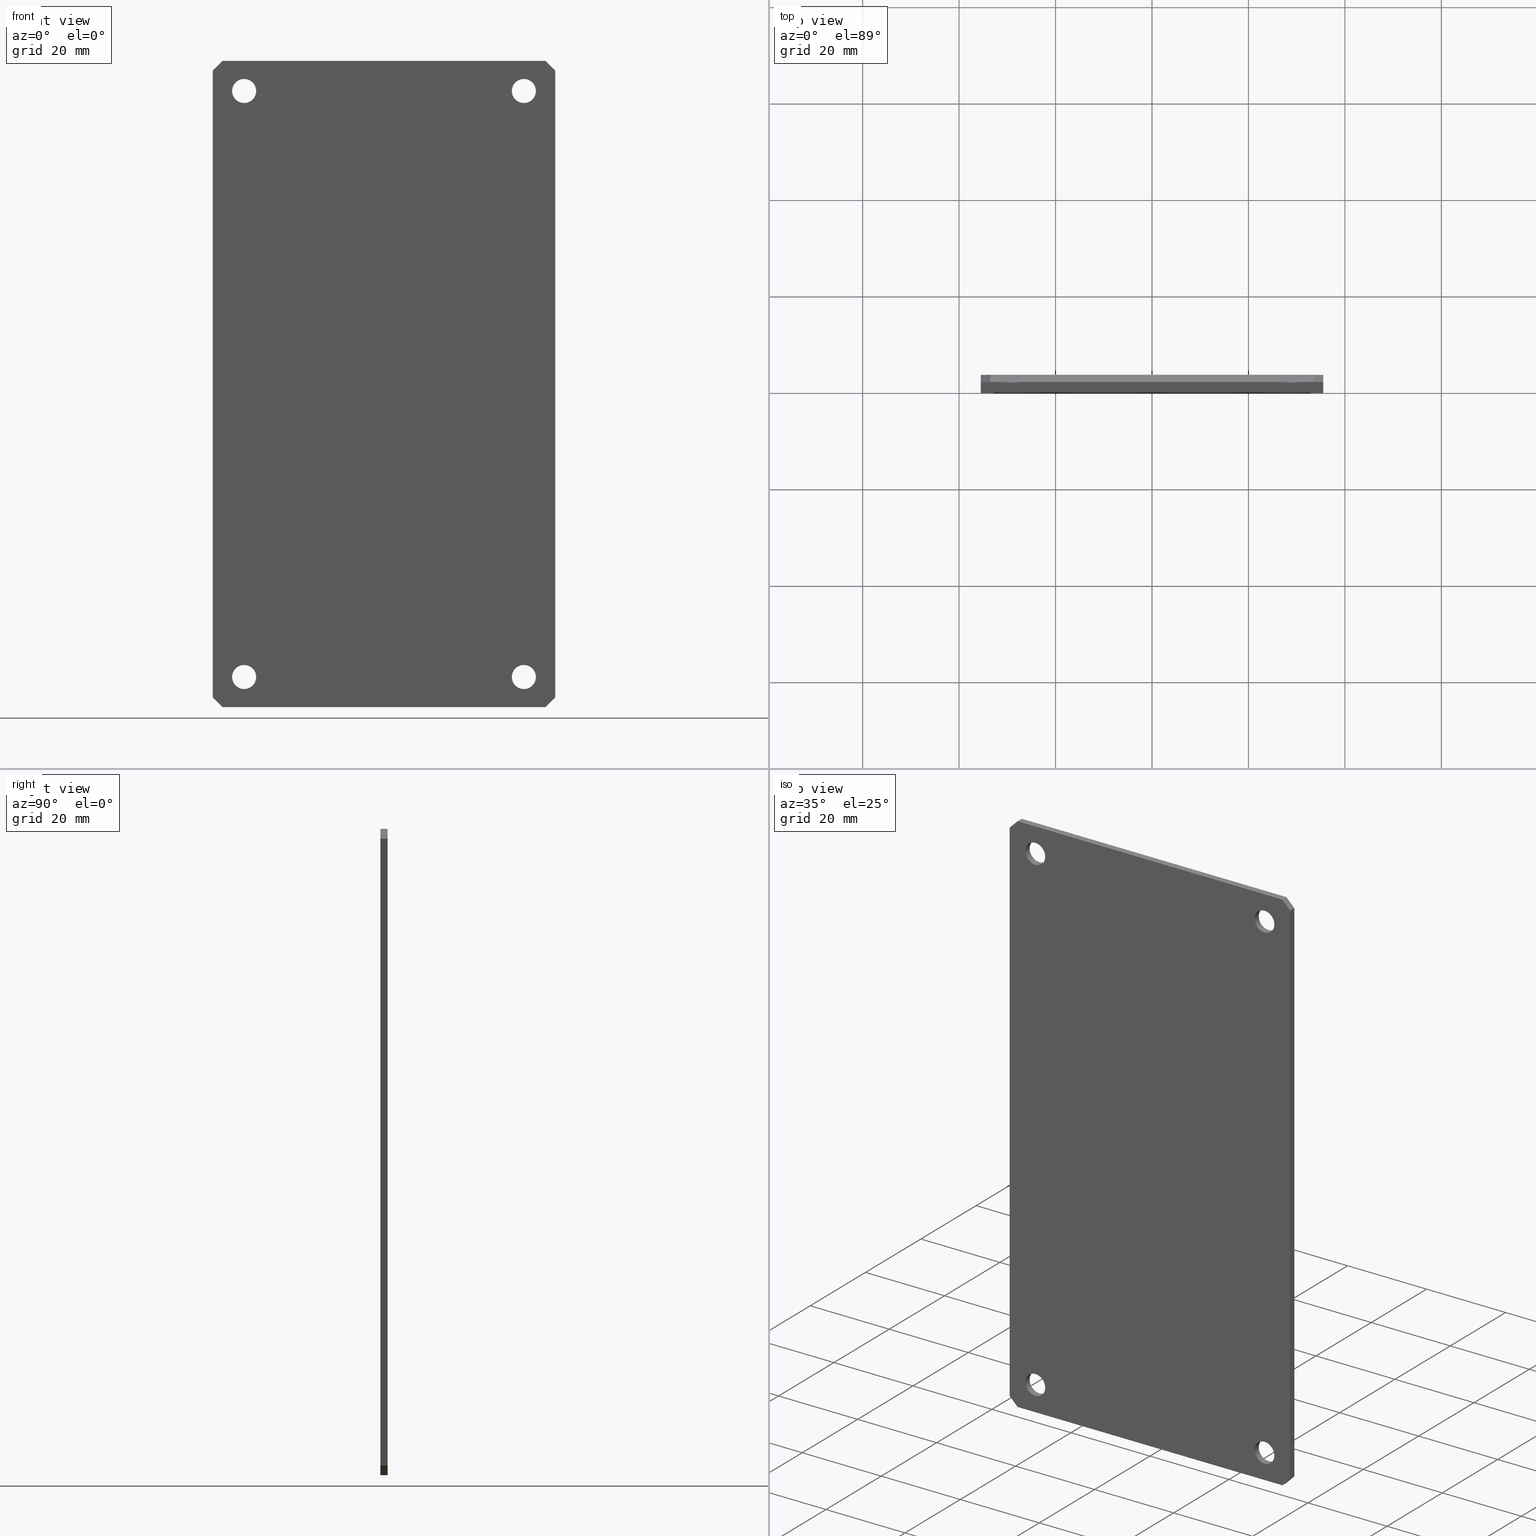
[diagram: canonical four-view strip — front | top / right | iso, engineering-drawing reading convention]
A machine part, canonical four-view strip (front | top / right | iso — engineering-drawing reading convention). The complete STEP part file that produces these views, byte-faithful:
ISO-10303-21;
HEADER;
FILE_DESCRIPTION (( 'STEP AP214' ),
    '1' );
FILE_NAME ('TM 0816.STEP',
    '2010-02-17T12:28:14',
    ( 'KennethW' ),
    ( 'FIBOX' ),
    'SwSTEP 2.0',
    'SolidWorks 2009',
    '' );
FILE_SCHEMA (( 'AUTOMOTIVE_DESIGN' ));
ENDSEC;

DATA;
#1 = ORIENTED_EDGE ( 'NONE', *, *, #3, .F. ) ;
#2 = VERTEX_POINT ( 'NONE', #242 ) ;
#3 = EDGE_CURVE ( 'NONE', #4, #2, #236, .T. ) ;
#4 = VERTEX_POINT ( 'NONE', #232 ) ;
#5 = VERTEX_POINT ( 'NONE', #231 ) ;
#6 = VERTEX_POINT ( 'NONE', #230 ) ;
#7 = ORIENTED_EDGE ( 'NONE', *, *, #52, .T. ) ;
#8 = ORIENTED_EDGE ( 'NONE', *, *, #9, .F. ) ;
#9 = EDGE_CURVE ( 'NONE', #159, #15, #217, .T. ) ;
#10 = ORIENTED_EDGE ( 'NONE', *, *, #161, .F. ) ;
#11 = EDGE_LOOP ( 'NONE', ( #106, #107 ) ) ;
#12 = VERTEX_POINT ( 'NONE', #213 ) ;
#13 = ORIENTED_EDGE ( 'NONE', *, *, #14, .T. ) ;
#14 = EDGE_CURVE ( 'NONE', #41, #154, #212, .T. ) ;
#15 = VERTEX_POINT ( 'NONE', #207 ) ;
#16 = ORIENTED_EDGE ( 'NONE', *, *, #17, .T. ) ;
#17 = EDGE_CURVE ( 'NONE', #30, #18, #205, .T. ) ;
#18 = VERTEX_POINT ( 'NONE', #306 ) ;
#19 = EDGE_CURVE ( 'NONE', #155, #158, #294, .T. ) ;
#20 = EDGE_CURVE ( 'NONE', #27, #66, #303, .T. ) ;
#21 = VERTEX_POINT ( 'NONE', #280 ) ;
#22 = ORIENTED_EDGE ( 'NONE', *, *, #19, .F. ) ;
#23 = ORIENTED_EDGE ( 'NONE', *, *, #24, .F. ) ;
#24 = EDGE_CURVE ( 'NONE', #25, #18, #289, .T. ) ;
#25 = VERTEX_POINT ( 'NONE', #291 ) ;
#26 = ORIENTED_EDGE ( 'NONE', *, *, #40, .F. ) ;
#27 = VERTEX_POINT ( 'NONE', #290 ) ;
#28 = ORIENTED_EDGE ( 'NONE', *, *, #166, .F. ) ;
#29 = ORIENTED_EDGE ( 'NONE', *, *, #161, .T. ) ;
#30 = VERTEX_POINT ( 'NONE', #309 ) ;
#31 = ORIENTED_EDGE ( 'NONE', *, *, #20, .F. ) ;
#32 = EDGE_LOOP ( 'NONE', ( #13, #38, #31, #28 ) ) ;
#33 = ORIENTED_EDGE ( 'NONE', *, *, #143, .T. ) ;
#34 = EDGE_CURVE ( 'NONE', #21, #158, #301, .T. ) ;
#35 = ADVANCED_FACE ( 'NONE', ( #286 ), #282, .F. ) ;
#36 = EDGE_LOOP ( 'NONE', ( #29, #33, #37, #26 ) ) ;
#37 = ORIENTED_EDGE ( 'NONE', *, *, #157, .F. ) ;
#38 = ORIENTED_EDGE ( 'NONE', *, *, #39, .T. ) ;
#39 = EDGE_CURVE ( 'NONE', #154, #66, #295, .T. ) ;
#40 = EDGE_CURVE ( 'NONE', #15, #12, #296, .T. ) ;
#41 = VERTEX_POINT ( 'NONE', #324 ) ;
#42 = ORIENTED_EDGE ( 'NONE', *, *, #43, .F. ) ;
#43 = EDGE_CURVE ( 'NONE', #44, #4, #322, .T. ) ;
#44 = VERTEX_POINT ( 'NONE', #318 ) ;
#45 = ORIENTED_EDGE ( 'NONE', *, *, #46, .F. ) ;
#46 = EDGE_CURVE ( 'NONE', #47, #44, #317, .T. ) ;
#47 = VERTEX_POINT ( 'NONE', #313 ) ;
#48 = ORIENTED_EDGE ( 'NONE', *, *, #49, .F. ) ;
#49 = EDGE_CURVE ( 'NONE', #50, #47, #312, .T. ) ;
#50 = VERTEX_POINT ( 'NONE', #329 ) ;
#51 = ORIENTED_EDGE ( 'NONE', *, *, #140, .F. ) ;
#52 = EDGE_CURVE ( 'NONE', #6, #112, #328, .T. ) ;
#53 = EDGE_LOOP ( 'NONE', ( #56, #57 ) ) ;
#54 = ORIENTED_EDGE ( 'NONE', *, *, #55, .T. ) ;
#55 = EDGE_CURVE ( 'NONE', #66, #27, #270, .T. ) ;
#56 = ORIENTED_EDGE ( 'NONE', *, *, #19, .T. ) ;
#57 = ORIENTED_EDGE ( 'NONE', *, *, #58, .T. ) ;
#58 = EDGE_CURVE ( 'NONE', #158, #155, #265, .T. ) ;
#59 = ADVANCED_FACE ( 'NONE', ( #279 ), #275, .F. ) ;
#60 = EDGE_LOOP ( 'NONE', ( #61, #62, #64, #70 ) ) ;
#61 = ORIENTED_EDGE ( 'NONE', *, *, #186, .T. ) ;
#62 = ORIENTED_EDGE ( 'NONE', *, *, #63, .F. ) ;
#63 = EDGE_CURVE ( 'NONE', #113, #5, #260, .T. ) ;
#64 = ORIENTED_EDGE ( 'NONE', *, *, #111, .F. ) ;
#65 = EDGE_LOOP ( 'NONE', ( #162, #16, #23, #146 ) ) ;
#66 = VERTEX_POINT ( 'NONE', #256 ) ;
#67 = EDGE_LOOP ( 'NONE', ( #156, #153, #22, #145 ) ) ;
#68 = MANIFOLD_SOLID_BREP ( 'NONE', #194 ) ;
#69 = ADVANCED_FACE ( 'NONE', ( #355 ), #353, .F. ) ;
#70 = ORIENTED_EDGE ( 'NONE', *, *, #71, .T. ) ;
#71 = EDGE_CURVE ( 'NONE', #112, #199, #396, .T. ) ;
#72 = ADVANCED_FACE ( 'NONE', ( #435 ), #411, .F. ) ;
#73 = EDGE_LOOP ( 'NONE', ( #74, #75, #77, #78 ) ) ;
#74 = ORIENTED_EDGE ( 'NONE', *, *, #140, .T. ) ;
#75 = ORIENTED_EDGE ( 'NONE', *, *, #76, .F. ) ;
#76 = EDGE_CURVE ( 'NONE', #116, #50, #409, .T. ) ;
#77 = ORIENTED_EDGE ( 'NONE', *, *, #115, .F. ) ;
#78 = ORIENTED_EDGE ( 'NONE', *, *, #63, .T. ) ;
#79 = ADVANCED_FACE ( 'NONE', ( #371 ), #417, .F. ) ;
#80 = EDGE_LOOP ( 'NONE', ( #81, #82, #84, #85 ) ) ;
#81 = ORIENTED_EDGE ( 'NONE', *, *, #49, .T. ) ;
#82 = ORIENTED_EDGE ( 'NONE', *, *, #83, .F. ) ;
#83 = EDGE_CURVE ( 'NONE', #119, #47, #432, .T. ) ;
#84 = ORIENTED_EDGE ( 'NONE', *, *, #118, .F. ) ;
#85 = ORIENTED_EDGE ( 'NONE', *, *, #76, .T. ) ;
#86 = ADVANCED_FACE ( 'NONE', ( #405 ), #433, .F. ) ;
#87 = EDGE_LOOP ( 'NONE', ( #88, #89, #91, #92 ) ) ;
#88 = ORIENTED_EDGE ( 'NONE', *, *, #46, .T. ) ;
#89 = ORIENTED_EDGE ( 'NONE', *, *, #90, .F. ) ;
#90 = EDGE_CURVE ( 'NONE', #122, #44, #421, .T. ) ;
#91 = ORIENTED_EDGE ( 'NONE', *, *, #121, .F. ) ;
#92 = ORIENTED_EDGE ( 'NONE', *, *, #83, .T. ) ;
#93 = ADVANCED_FACE ( 'NONE', ( #422 ), #416, .F. ) ;
#94 = EDGE_LOOP ( 'NONE', ( #95, #96, #98, #99 ) ) ;
#95 = ORIENTED_EDGE ( 'NONE', *, *, #43, .T. ) ;
#96 = ORIENTED_EDGE ( 'NONE', *, *, #97, .F. ) ;
#97 = EDGE_CURVE ( 'NONE', #125, #4, #403, .T. ) ;
#98 = ORIENTED_EDGE ( 'NONE', *, *, #124, .F. ) ;
#99 = ORIENTED_EDGE ( 'NONE', *, *, #90, .T. ) ;
#100 = ADVANCED_FACE ( 'NONE', ( #361 ), #399, .F. ) ;
#101 = EDGE_LOOP ( 'NONE', ( #102, #103, #105, #181 ) ) ;
#102 = ORIENTED_EDGE ( 'NONE', *, *, #3, .T. ) ;
#103 = ORIENTED_EDGE ( 'NONE', *, *, #104, .F. ) ;
#104 = EDGE_CURVE ( 'NONE', #128, #2, #358, .T. ) ;
#105 = ORIENTED_EDGE ( 'NONE', *, *, #127, .F. ) ;
#106 = ORIENTED_EDGE ( 'NONE', *, *, #163, .F. ) ;
#107 = ORIENTED_EDGE ( 'NONE', *, *, #108, .F. ) ;
#108 = EDGE_CURVE ( 'NONE', #30, #164, #365, .T. ) ;
#109 = EDGE_LOOP ( 'NONE', ( #110, #114, #117, #120, #123, #126, #129, #7 ) ) ;
#110 = ORIENTED_EDGE ( 'NONE', *, *, #111, .T. ) ;
#111 = EDGE_CURVE ( 'NONE', #112, #113, #429, .T. ) ;
#112 = VERTEX_POINT ( 'NONE', #425 ) ;
#113 = VERTEX_POINT ( 'NONE', #424 ) ;
#114 = ORIENTED_EDGE ( 'NONE', *, *, #115, .T. ) ;
#115 = EDGE_CURVE ( 'NONE', #113, #116, #348, .T. ) ;
#116 = VERTEX_POINT ( 'NONE', #344 ) ;
#117 = ORIENTED_EDGE ( 'NONE', *, *, #118, .T. ) ;
#118 = EDGE_CURVE ( 'NONE', #116, #119, #343, .T. ) ;
#119 = VERTEX_POINT ( 'NONE', #339 ) ;
#120 = ORIENTED_EDGE ( 'NONE', *, *, #121, .T. ) ;
#121 = EDGE_CURVE ( 'NONE', #119, #122, #393, .T. ) ;
#122 = VERTEX_POINT ( 'NONE', #389 ) ;
#123 = ORIENTED_EDGE ( 'NONE', *, *, #124, .T. ) ;
#124 = EDGE_CURVE ( 'NONE', #122, #125, #388, .T. ) ;
#125 = VERTEX_POINT ( 'NONE', #384 ) ;
#126 = ORIENTED_EDGE ( 'NONE', *, *, #127, .T. ) ;
#127 = EDGE_CURVE ( 'NONE', #125, #128, #383, .T. ) ;
#128 = VERTEX_POINT ( 'NONE', #436 ) ;
#129 = ORIENTED_EDGE ( 'NONE', *, *, #130, .T. ) ;
#130 = EDGE_CURVE ( 'NONE', #128, #6, #437, .T. ) ;
#131 = EDGE_LOOP ( 'NONE', ( #177, #175 ) ) ;
#132 = ORIENTED_EDGE ( 'NONE', *, *, #150, .F. ) ;
#133 = ORIENTED_EDGE ( 'NONE', *, *, #134, .F. ) ;
#134 = EDGE_CURVE ( 'NONE', #21, #152, #441, .T. ) ;
#135 = ADVANCED_FACE ( 'NONE', ( #460, #459, #458, #457, #456 ), #455, .F. ) ;
#136 = EDGE_LOOP ( 'NONE', ( #137, #138 ) ) ;
#137 = ORIENTED_EDGE ( 'NONE', *, *, #157, .T. ) ;
#138 = ORIENTED_EDGE ( 'NONE', *, *, #139, .T. ) ;
#139 = EDGE_CURVE ( 'NONE', #144, #12, #450, .T. ) ;
#140 = EDGE_CURVE ( 'NONE', #5, #50, #595, .T. ) ;
#141 = EDGE_LOOP ( 'NONE', ( #142, #54 ) ) ;
#142 = ORIENTED_EDGE ( 'NONE', *, *, #20, .T. ) ;
#143 = EDGE_CURVE ( 'NONE', #159, #144, #597, .T. ) ;
#144 = VERTEX_POINT ( 'NONE', #538 ) ;
#145 = ORIENTED_EDGE ( 'NONE', *, *, #165, .F. ) ;
#146 = ORIENTED_EDGE ( 'NONE', *, *, #147, .F. ) ;
#147 = EDGE_CURVE ( 'NONE', #164, #25, #537, .T. ) ;
#148 = ADVANCED_FACE ( 'NONE', ( #594, #593, #592, #591, #590 ), #589, .T. ) ;
#149 = EDGE_LOOP ( 'NONE', ( #10, #8 ) ) ;
#150 = EDGE_CURVE ( 'NONE', #152, #21, #587, .T. ) ;
#151 = ADVANCED_FACE ( 'NONE', ( #579 ), #578, .F. ) ;
#152 = VERTEX_POINT ( 'NONE', #576 ) ;
#153 = ORIENTED_EDGE ( 'NONE', *, *, #34, .T. ) ;
#154 = VERTEX_POINT ( 'NONE', #572 ) ;
#155 = VERTEX_POINT ( 'NONE', #571 ) ;
#156 = ORIENTED_EDGE ( 'NONE', *, *, #150, .T. ) ;
#157 = EDGE_CURVE ( 'NONE', #12, #144, #510, .T. ) ;
#158 = VERTEX_POINT ( 'NONE', #505 ) ;
#159 = VERTEX_POINT ( 'NONE', #504 ) ;
#160 = ADVANCED_FACE ( 'NONE', ( #503 ), #502, .F. ) ;
#161 = EDGE_CURVE ( 'NONE', #15, #159, #501, .T. ) ;
#162 = ORIENTED_EDGE ( 'NONE', *, *, #163, .T. ) ;
#163 = EDGE_CURVE ( 'NONE', #164, #30, #492, .T. ) ;
#164 = VERTEX_POINT ( 'NONE', #487 ) ;
#165 = EDGE_CURVE ( 'NONE', #152, #155, #486, .T. ) ;
#166 = EDGE_CURVE ( 'NONE', #41, #27, #482, .T. ) ;
#167 = ORIENTED_EDGE ( 'NONE', *, *, #179, .T. ) ;
#168 = ORIENTED_EDGE ( 'NONE', *, *, #169, .F. ) ;
#169 = EDGE_CURVE ( 'NONE', #6, #173, #570, .T. ) ;
#170 = ORIENTED_EDGE ( 'NONE', *, *, #130, .F. ) ;
#171 = ORIENTED_EDGE ( 'NONE', *, *, #104, .T. ) ;
#172 = ORIENTED_EDGE ( 'NONE', *, *, #180, .F. ) ;
#173 = VERTEX_POINT ( 'NONE', #566 ) ;
#174 = EDGE_LOOP ( 'NONE', ( #132, #133 ) ) ;
#175 = ORIENTED_EDGE ( 'NONE', *, *, #176, .F. ) ;
#176 = EDGE_CURVE ( 'NONE', #154, #41, #565, .T. ) ;
#177 = ORIENTED_EDGE ( 'NONE', *, *, #14, .F. ) ;
#178 = ORIENTED_EDGE ( 'NONE', *, *, #179, .F. ) ;
#179 = EDGE_CURVE ( 'NONE', #2, #173, #560, .T. ) ;
#180 = EDGE_CURVE ( 'NONE', #173, #199, #556, .T. ) ;
#181 = ORIENTED_EDGE ( 'NONE', *, *, #97, .T. ) ;
#182 = ADVANCED_FACE ( 'NONE', ( #552 ), #550, .F. ) ;
#183 = EDGE_LOOP ( 'NONE', ( #167, #168, #170, #171 ) ) ;
#184 = EDGE_LOOP ( 'NONE', ( #189, #172, #178, #1, #42, #45, #48, #51 ) ) ;
#185 = ORIENTED_EDGE ( 'NONE', *, *, #24, .T. ) ;
#186 = EDGE_CURVE ( 'NONE', #199, #5, #551, .T. ) ;
#187 = ORIENTED_EDGE ( 'NONE', *, *, #169, .T. ) ;
#188 = ORIENTED_EDGE ( 'NONE', *, *, #71, .F. ) ;
#189 = ORIENTED_EDGE ( 'NONE', *, *, #186, .F. ) ;
#190 = ORIENTED_EDGE ( 'NONE', *, *, #34, .F. ) ;
#191 = ORIENTED_EDGE ( 'NONE', *, *, #134, .T. ) ;
#192 = ORIENTED_EDGE ( 'NONE', *, *, #165, .T. ) ;
#193 = ORIENTED_EDGE ( 'NONE', *, *, #58, .F. ) ;
#194 = CLOSED_SHELL ( 'NONE', ( #69, #151, #160, #35, #148, #135, #59, #72, #79, #86, #93, #100, #182, #223, #222, #246, #240, #239 ) ) ;
#195 = ORIENTED_EDGE ( 'NONE', *, *, #108, .T. ) ;
#196 = ORIENTED_EDGE ( 'NONE', *, *, #147, .T. ) ;
#197 = ORIENTED_EDGE ( 'NONE', *, *, #17, .F. ) ;
#198 = EDGE_LOOP ( 'NONE', ( #185, #200 ) ) ;
#199 = VERTEX_POINT ( 'NONE', #542 ) ;
#200 = ORIENTED_EDGE ( 'NONE', *, *, #201, .T. ) ;
#201 = EDGE_CURVE ( 'NONE', #18, #25, #541, .T. ) ;
#202 = DIRECTION ( 'NONE',  ( -0.0000000000000000000, -1.000000000000000000, -0.0000000000000000000 ) ) ;
#203 = VECTOR ( 'NONE', #202, 1000.000000000000000 ) ;
#204 = CARTESIAN_POINT ( 'NONE',  ( -29.00000000000000000, 1.500000000000000000, -58.24999999999998600 ) ) ;
#205 = LINE ( 'NONE', #204, #203 ) ;
#206 = STYLED_ITEM ( 'NONE', ( #249 ), #68 ) ;
#207 = CARTESIAN_POINT ( 'NONE',  ( 29.00000000000000000, 1.500000000000000000, 58.25000000000000000 ) ) ;
#208 = DIRECTION ( 'NONE',  ( 0.0000000000000000000, 0.0000000000000000000, -1.000000000000000000 ) ) ;
#209 = DIRECTION ( 'NONE',  ( -0.0000000000000000000, 1.000000000000000000, -0.0000000000000000000 ) ) ;
#210 = CARTESIAN_POINT ( 'NONE',  ( 29.00000000000000000, 1.500000000000000000, -60.74999999999999300 ) ) ;
#211 = AXIS2_PLACEMENT_3D ( 'NONE', #210, #209, #208 ) ;
#212 = CIRCLE ( 'NONE', #211, 2.499999999999995100 ) ;
#213 = CARTESIAN_POINT ( 'NONE',  ( 29.00000000000000000, 0.0000000000000000000, 58.25000000000000000 ) ) ;
#214 = DIRECTION ( 'NONE',  ( 0.0000000000000000000, 0.0000000000000000000, 1.000000000000000000 ) ) ;
#215 = DIRECTION ( 'NONE',  ( 0.0000000000000000000, 1.000000000000000000, 0.0000000000000000000 ) ) ;
#216 = AXIS2_PLACEMENT_3D ( 'NONE', #229, #215, #214 ) ;
#217 = CIRCLE ( 'NONE', #216, 2.499999999999995100 ) ;
#218 = ORIENTED_EDGE ( 'NONE', *, *, #180, .T. ) ;
#219 = ORIENTED_EDGE ( 'NONE', *, *, #176, .T. ) ;
#220 = ORIENTED_EDGE ( 'NONE', *, *, #166, .T. ) ;
#221 = EDGE_LOOP ( 'NONE', ( #197, #195, #196, #245 ) ) ;
#222 = ADVANCED_FACE ( 'NONE', ( #529 ), #528, .F. ) ;
#223 = ADVANCED_FACE ( 'NONE', ( #526 ), #522, .F. ) ;
#224 = EDGE_LOOP ( 'NONE', ( #218, #188, #225, #187 ) ) ;
#225 = ORIENTED_EDGE ( 'NONE', *, *, #52, .F. ) ;
#226 = ORIENTED_EDGE ( 'NONE', *, *, #139, .F. ) ;
#227 = EDGE_LOOP ( 'NONE', ( #190, #191, #192, #193 ) ) ;
#228 = ORIENTED_EDGE ( 'NONE', *, *, #9, .T. ) ;
#229 = CARTESIAN_POINT ( 'NONE',  ( 29.00000000000000000, 1.500000000000000000, 60.75000000000000700 ) ) ;
#230 = CARTESIAN_POINT ( 'NONE',  ( 33.49999999999999300, 1.500000000000000000, -67.00000000000000000 ) ) ;
#231 = CARTESIAN_POINT ( 'NONE',  ( -35.49999999999999300, 0.0000000000000000000, -65.00000000000001400 ) ) ;
#232 = CARTESIAN_POINT ( 'NONE',  ( 35.49999999999999300, 0.0000000000000000000, 65.00000000000001400 ) ) ;
#233 = DIRECTION ( 'NONE',  ( 0.0000000000000000000, 0.0000000000000000000, -1.000000000000000000 ) ) ;
#234 = VECTOR ( 'NONE', #233, 1000.000000000000000 ) ;
#235 = CARTESIAN_POINT ( 'NONE',  ( 35.49999999999999300, 0.0000000000000000000, 65.00000000000001400 ) ) ;
#236 = LINE ( 'NONE', #235, #234 ) ;
#237 = EDGE_LOOP ( 'NONE', ( #238, #228, #247, #226 ) ) ;
#238 = ORIENTED_EDGE ( 'NONE', *, *, #143, .F. ) ;
#239 = ADVANCED_FACE ( 'NONE', ( #520 ), #516, .F. ) ;
#240 = ADVANCED_FACE ( 'NONE', ( #514 ), #617, .F. ) ;
#241 = ORIENTED_EDGE ( 'NONE', *, *, #55, .F. ) ;
#242 = CARTESIAN_POINT ( 'NONE',  ( 35.49999999999999300, 0.0000000000000000000, -65.00000000000001400 ) ) ;
#243 = EDGE_LOOP ( 'NONE', ( #244, #219, #220, #241 ) ) ;
#244 = ORIENTED_EDGE ( 'NONE', *, *, #39, .F. ) ;
#245 = ORIENTED_EDGE ( 'NONE', *, *, #201, .F. ) ;
#246 = ADVANCED_FACE ( 'NONE', ( #618 ), #612, .F. ) ;
#247 = ORIENTED_EDGE ( 'NONE', *, *, #40, .T. ) ;
#248 = CARTESIAN_POINT ( 'NONE',  ( -29.00000000000000000, 0.0000000000000000000, -60.74999999999999300 ) ) ;
#249 = PRESENTATION_STYLE_ASSIGNMENT (( #250 ) ) ;
#250 = SURFACE_STYLE_USAGE ( .BOTH. , #251 ) ;
#251 = SURFACE_SIDE_STYLE ('',( #252 ) ) ;
#252 = SURFACE_STYLE_FILL_AREA ( #253 ) ;
#253 = FILL_AREA_STYLE ('',( #254 ) ) ;
#254 = FILL_AREA_STYLE_COLOUR ( '', #255 ) ;
#255 = COLOUR_RGB ( '',0.7529411764705882200, 0.7529411764705882200, 0.7529411764705882200 ) ;
#256 = CARTESIAN_POINT ( 'NONE',  ( 29.00000000000000000, 0.0000000000000000000, -58.24999999999998600 ) ) ;
#257 = DIRECTION ( 'NONE',  ( -0.0000000000000000000, -1.000000000000000000, -0.0000000000000000000 ) ) ;
#258 = VECTOR ( 'NONE', #257, 1000.000000000000000 ) ;
#259 = CARTESIAN_POINT ( 'NONE',  ( -35.49999999999999300, 1.500000000000000000, -65.00000000000001400 ) ) ;
#260 = LINE ( 'NONE', #259, #258 ) ;
#261 = DIRECTION ( 'NONE',  ( 0.7071067811865487900, 0.0000000000000000000, -0.7071067811865462400 ) ) ;
#262 = DIRECTION ( 'NONE',  ( -0.0000000000000000000, -1.000000000000000000, -0.0000000000000000000 ) ) ;
#263 = VECTOR ( 'NONE', #262, 1000.000000000000000 ) ;
#264 = CARTESIAN_POINT ( 'NONE',  ( 29.00000000000000000, 1.500000000000000000, -58.24999999999998600 ) ) ;
#265 = CIRCLE ( 'NONE', #278, 2.500000000000002200 ) ;
#266 = DIRECTION ( 'NONE',  ( 0.0000000000000000000, 0.0000000000000000000, -1.000000000000000000 ) ) ;
#267 = DIRECTION ( 'NONE',  ( -0.0000000000000000000, 1.000000000000000000, -0.0000000000000000000 ) ) ;
#268 = CARTESIAN_POINT ( 'NONE',  ( 29.00000000000000000, 0.0000000000000000000, -60.74999999999999300 ) ) ;
#269 = AXIS2_PLACEMENT_3D ( 'NONE', #268, #267, #266 ) ;
#270 = CIRCLE ( 'NONE', #269, 2.499999999999995100 ) ;
#271 = CARTESIAN_POINT ( 'NONE',  ( -29.00000000000000000, 0.0000000000000000000, 60.75000000000000700 ) ) ;
#272 = DIRECTION ( 'NONE',  ( 0.7071067811865462400, -0.0000000000000000000, 0.7071067811865487900 ) ) ;
#273 = CARTESIAN_POINT ( 'NONE',  ( -35.49999999999999300, 1.500000000000000000, -65.00000000000001400 ) ) ;
#274 = AXIS2_PLACEMENT_3D ( 'NONE', #273, #272, #261 ) ;
#275 = PLANE ( 'NONE',  #274 ) ;
#276 = DIRECTION ( 'NONE',  ( 0.0000000000000000000, 0.0000000000000000000, -1.000000000000000000 ) ) ;
#277 = DIRECTION ( 'NONE',  ( -0.0000000000000000000, 1.000000000000000000, -0.0000000000000000000 ) ) ;
#278 = AXIS2_PLACEMENT_3D ( 'NONE', #271, #277, #276 ) ;
#279 = FACE_OUTER_BOUND ( 'NONE', #60, .T. ) ;
#280 = CARTESIAN_POINT ( 'NONE',  ( -29.00000000000000000, 1.500000000000000000, 63.25000000000000000 ) ) ;
#281 = AXIS2_PLACEMENT_3D ( 'NONE', #308, #323, #305 ) ;
#282 = CYLINDRICAL_SURFACE ( 'NONE', #293, 2.499999999999995100 ) ;
#283 = DIRECTION ( 'NONE',  ( -0.0000000000000000000, -1.000000000000000000, -0.0000000000000000000 ) ) ;
#284 = VECTOR ( 'NONE', #283, 1000.000000000000000 ) ;
#285 = CARTESIAN_POINT ( 'NONE',  ( 29.00000000000000000, 1.500000000000000000, 58.25000000000000000 ) ) ;
#286 = FACE_OUTER_BOUND ( 'NONE', #65, .T. ) ;
#287 = VECTOR ( 'NONE', #299, 1000.000000000000000 ) ;
#288 = DIRECTION ( 'NONE',  ( -0.0000000000000000000, 1.000000000000000000, -0.0000000000000000000 ) ) ;
#289 = CIRCLE ( 'NONE', #307, 2.500000000000002200 ) ;
#290 = CARTESIAN_POINT ( 'NONE',  ( 29.00000000000000000, 0.0000000000000000000, -63.24999999999998600 ) ) ;
#291 = CARTESIAN_POINT ( 'NONE',  ( -29.00000000000000000, 0.0000000000000000000, -63.24999999999998600 ) ) ;
#292 = DIRECTION ( 'NONE',  ( 0.0000000000000000000, 0.0000000000000000000, -1.000000000000000000 ) ) ;
#293 = AXIS2_PLACEMENT_3D ( 'NONE', #302, #304, #297 ) ;
#294 = CIRCLE ( 'NONE', #333, 2.500000000000002200 ) ;
#295 = LINE ( 'NONE', #264, #263 ) ;
#296 = LINE ( 'NONE', #285, #284 ) ;
#297 = DIRECTION ( 'NONE',  ( 0.0000000000000000000, 0.0000000000000000000, -1.000000000000000000 ) ) ;
#298 = CARTESIAN_POINT ( 'NONE',  ( -29.00000000000000000, 0.0000000000000000000, 60.75000000000000700 ) ) ;
#299 = DIRECTION ( 'NONE',  ( -0.0000000000000000000, -1.000000000000000000, -0.0000000000000000000 ) ) ;
#300 = CARTESIAN_POINT ( 'NONE',  ( -29.00000000000000000, 1.500000000000000000, 63.25000000000000000 ) ) ;
#301 = LINE ( 'NONE', #300, #287 ) ;
#302 = CARTESIAN_POINT ( 'NONE',  ( -29.00000000000000000, 1.500000000000000000, -60.74999999999999300 ) ) ;
#303 = CIRCLE ( 'NONE', #281, 2.499999999999995100 ) ;
#304 = DIRECTION ( 'NONE',  ( -0.0000000000000000000, -1.000000000000000000, -0.0000000000000000000 ) ) ;
#305 = DIRECTION ( 'NONE',  ( 0.0000000000000000000, 0.0000000000000000000, -1.000000000000000000 ) ) ;
#306 = CARTESIAN_POINT ( 'NONE',  ( -29.00000000000000000, 0.0000000000000000000, -58.24999999999998600 ) ) ;
#307 = AXIS2_PLACEMENT_3D ( 'NONE', #248, #311, #310 ) ;
#308 = CARTESIAN_POINT ( 'NONE',  ( 29.00000000000000000, 0.0000000000000000000, -60.74999999999999300 ) ) ;
#309 = CARTESIAN_POINT ( 'NONE',  ( -29.00000000000000000, 1.500000000000000000, -58.24999999999998600 ) ) ;
#310 = DIRECTION ( 'NONE',  ( 0.0000000000000000000, 0.0000000000000000000, 1.000000000000000000 ) ) ;
#311 = DIRECTION ( 'NONE',  ( 0.0000000000000000000, 1.000000000000000000, 0.0000000000000000000 ) ) ;
#312 = LINE ( 'NONE', #332, #331 ) ;
#313 = CARTESIAN_POINT ( 'NONE',  ( -33.49999999999999300, 0.0000000000000000000, 67.00000000000000000 ) ) ;
#314 = DIRECTION ( 'NONE',  ( 1.000000000000000000, 0.0000000000000000000, 0.0000000000000000000 ) ) ;
#315 = VECTOR ( 'NONE', #314, 1000.000000000000000 ) ;
#316 = CARTESIAN_POINT ( 'NONE',  ( -33.49999999999999300, 0.0000000000000000000, 67.00000000000000000 ) ) ;
#317 = LINE ( 'NONE', #316, #315 ) ;
#318 = CARTESIAN_POINT ( 'NONE',  ( 33.49999999999999300, 0.0000000000000000000, 67.00000000000000000 ) ) ;
#319 = DIRECTION ( 'NONE',  ( 0.7071067811865487900, -0.0000000000000000000, -0.7071067811865463500 ) ) ;
#320 = VECTOR ( 'NONE', #319, 1000.000000000000000 ) ;
#321 = CARTESIAN_POINT ( 'NONE',  ( 35.49999999999999300, 0.0000000000000000000, 65.00000000000001400 ) ) ;
#322 = LINE ( 'NONE', #321, #320 ) ;
#323 = DIRECTION ( 'NONE',  ( -0.0000000000000000000, 1.000000000000000000, -0.0000000000000000000 ) ) ;
#324 = CARTESIAN_POINT ( 'NONE',  ( 29.00000000000000000, 1.500000000000000000, -63.24999999999998600 ) ) ;
#325 = DIRECTION ( 'NONE',  ( -1.000000000000000000, -0.0000000000000000000, -0.0000000000000000000 ) ) ;
#326 = VECTOR ( 'NONE', #325, 1000.000000000000000 ) ;
#327 = CARTESIAN_POINT ( 'NONE',  ( -33.49999999999999300, 1.500000000000000000, -67.00000000000000000 ) ) ;
#328 = LINE ( 'NONE', #327, #326 ) ;
#329 = CARTESIAN_POINT ( 'NONE',  ( -35.49999999999999300, 0.0000000000000000000, 65.00000000000001400 ) ) ;
#330 = DIRECTION ( 'NONE',  ( 0.7071067811865487900, 0.0000000000000000000, 0.7071067811865463500 ) ) ;
#331 = VECTOR ( 'NONE', #330, 1000.000000000000000 ) ;
#332 = CARTESIAN_POINT ( 'NONE',  ( -35.49999999999999300, 0.0000000000000000000, 65.00000000000001400 ) ) ;
#333 = AXIS2_PLACEMENT_3D ( 'NONE', #298, #288, #292 ) ;
#334 = PRESENTATION_LAYER_ASSIGNMENT (  '', '', ( #206 ) ) ;
#335 = MECHANICAL_DESIGN_GEOMETRIC_PRESENTATION_REPRESENTATION (  '', ( #206 ), #352 ) ;
#336 =( LENGTH_UNIT ( ) NAMED_UNIT ( * ) SI_UNIT ( .MILLI., .METRE. ) );
#337 =( NAMED_UNIT ( * ) PLANE_ANGLE_UNIT ( ) SI_UNIT ( $, .RADIAN. ) );
#338 =( NAMED_UNIT ( * ) SI_UNIT ( $, .STERADIAN. ) SOLID_ANGLE_UNIT ( ) );
#339 = CARTESIAN_POINT ( 'NONE',  ( -33.49999999999999300, 1.500000000000000000, 67.00000000000000000 ) ) ;
#340 = DIRECTION ( 'NONE',  ( 0.7071067811865487900, 0.0000000000000000000, 0.7071067811865463500 ) ) ;
#341 = VECTOR ( 'NONE', #340, 1000.000000000000000 ) ;
#342 = CARTESIAN_POINT ( 'NONE',  ( -35.49999999999999300, 1.500000000000000000, 65.00000000000001400 ) ) ;
#343 = LINE ( 'NONE', #342, #341 ) ;
#344 = CARTESIAN_POINT ( 'NONE',  ( -35.49999999999999300, 1.500000000000000000, 65.00000000000001400 ) ) ;
#345 = DIRECTION ( 'NONE',  ( -0.0000000000000000000, -0.0000000000000000000, 1.000000000000000000 ) ) ;
#346 = VECTOR ( 'NONE', #345, 1000.000000000000000 ) ;
#347 = CARTESIAN_POINT ( 'NONE',  ( -35.49999999999999300, 1.500000000000000000, 65.00000000000001400 ) ) ;
#348 = LINE ( 'NONE', #347, #346 ) ;
#349 = DIRECTION ( 'NONE',  ( -1.000000000000000000, 0.0000000000000000000, -0.0000000000000000000 ) ) ;
#350 = DIRECTION ( 'NONE',  ( 0.0000000000000000000, 0.0000000000000000000, -1.000000000000000000 ) ) ;
#351 = UNCERTAINTY_MEASURE_WITH_UNIT (LENGTH_MEASURE( 1.000000000000000100E-005 ), #336, 'distance_accuracy_value', 'NONE');
#352 =( GEOMETRIC_REPRESENTATION_CONTEXT ( 3 ) GLOBAL_UNCERTAINTY_ASSIGNED_CONTEXT ( ( #351 ) ) GLOBAL_UNIT_ASSIGNED_CONTEXT ( ( #336, #337, #338 ) ) REPRESENTATION_CONTEXT ( 'NONE', 'WORKASPACE' ) );
#353 = CYLINDRICAL_SURFACE ( 'NONE', #395, 2.500000000000002200 ) ;
#354 = CARTESIAN_POINT ( 'NONE',  ( -29.00000000000000000, 1.500000000000000000, 60.75000000000000700 ) ) ;
#355 = FACE_OUTER_BOUND ( 'NONE', #67, .T. ) ;
#356 = DIRECTION ( 'NONE',  ( 0.0000000000000000000, 0.0000000000000000000, 1.000000000000000000 ) ) ;
#357 = DIRECTION ( 'NONE',  ( -1.000000000000000000, 0.0000000000000000000, 0.0000000000000000000 ) ) ;
#358 = LINE ( 'NONE', #368, #367 ) ;
#359 = CARTESIAN_POINT ( 'NONE',  ( 35.49999999999999300, 1.500000000000000000, 65.00000000000001400 ) ) ;
#360 = AXIS2_PLACEMENT_3D ( 'NONE', #359, #357, #356 ) ;
#361 = FACE_OUTER_BOUND ( 'NONE', #101, .T. ) ;
#362 = DIRECTION ( 'NONE',  ( 0.0000000000000000000, 1.000000000000000000, 0.0000000000000000000 ) ) ;
#363 = CARTESIAN_POINT ( 'NONE',  ( -29.00000000000000000, 1.500000000000000000, -60.74999999999999300 ) ) ;
#364 = AXIS2_PLACEMENT_3D ( 'NONE', #363, #362, #430 ) ;
#365 = CIRCLE ( 'NONE', #364, 2.500000000000002200 ) ;
#366 = DIRECTION ( 'NONE',  ( -0.0000000000000000000, -1.000000000000000000, -0.0000000000000000000 ) ) ;
#367 = VECTOR ( 'NONE', #366, 1000.000000000000000 ) ;
#368 = CARTESIAN_POINT ( 'NONE',  ( 35.49999999999999300, 1.500000000000000000, -65.00000000000001400 ) ) ;
#369 = VECTOR ( 'NONE', #394, 1000.000000000000000 ) ;
#370 = AXIS2_PLACEMENT_3D ( 'NONE', #431, #423, #434 ) ;
#371 = FACE_OUTER_BOUND ( 'NONE', #80, .T. ) ;
#372 = DIRECTION ( 'NONE',  ( -0.0000000000000000000, -1.000000000000000000, -0.0000000000000000000 ) ) ;
#373 = DIRECTION ( 'NONE',  ( -0.0000000000000000000, -1.000000000000000000, -0.0000000000000000000 ) ) ;
#374 = CARTESIAN_POINT ( 'NONE',  ( -33.49999999999999300, 1.500000000000000000, -67.00000000000000000 ) ) ;
#375 = DIRECTION ( 'NONE',  ( 0.0000000000000000000, 0.0000000000000000000, -1.000000000000000000 ) ) ;
#376 = DIRECTION ( 'NONE',  ( 0.0000000000000000000, 0.0000000000000000000, -1.000000000000000000 ) ) ;
#377 = DIRECTION ( 'NONE',  ( 1.000000000000000000, -0.0000000000000000000, 0.0000000000000000000 ) ) ;
#378 = VECTOR ( 'NONE', #372, 1000.000000000000000 ) ;
#379 = CARTESIAN_POINT ( 'NONE',  ( -35.49999999999999300, 1.500000000000000000, 65.00000000000001400 ) ) ;
#380 = DIRECTION ( 'NONE',  ( 0.0000000000000000000, 0.0000000000000000000, -1.000000000000000000 ) ) ;
#381 = VECTOR ( 'NONE', #380, 1000.000000000000000 ) ;
#382 = CARTESIAN_POINT ( 'NONE',  ( 35.49999999999999300, 1.500000000000000000, 65.00000000000001400 ) ) ;
#383 = LINE ( 'NONE', #382, #381 ) ;
#384 = CARTESIAN_POINT ( 'NONE',  ( 35.49999999999999300, 1.500000000000000000, 65.00000000000001400 ) ) ;
#385 = DIRECTION ( 'NONE',  ( 0.7071067811865487900, -0.0000000000000000000, -0.7071067811865463500 ) ) ;
#386 = VECTOR ( 'NONE', #385, 1000.000000000000000 ) ;
#387 = CARTESIAN_POINT ( 'NONE',  ( 35.49999999999999300, 1.500000000000000000, 65.00000000000001400 ) ) ;
#388 = LINE ( 'NONE', #387, #386 ) ;
#389 = CARTESIAN_POINT ( 'NONE',  ( 33.49999999999999300, 1.500000000000000000, 67.00000000000000000 ) ) ;
#390 = DIRECTION ( 'NONE',  ( 1.000000000000000000, 0.0000000000000000000, 0.0000000000000000000 ) ) ;
#391 = VECTOR ( 'NONE', #390, 1000.000000000000000 ) ;
#392 = CARTESIAN_POINT ( 'NONE',  ( -33.49999999999999300, 1.500000000000000000, 67.00000000000000000 ) ) ;
#393 = LINE ( 'NONE', #392, #391 ) ;
#394 = DIRECTION ( 'NONE',  ( -0.0000000000000000000, -1.000000000000000000, -0.0000000000000000000 ) ) ;
#395 = AXIS2_PLACEMENT_3D ( 'NONE', #354, #373, #375 ) ;
#396 = LINE ( 'NONE', #374, #369 ) ;
#397 = CARTESIAN_POINT ( 'NONE',  ( -33.49999999999999300, 1.500000000000000000, 67.00000000000000000 ) ) ;
#398 = AXIS2_PLACEMENT_3D ( 'NONE', #397, #350, #349 ) ;
#399 = PLANE ( 'NONE',  #360 ) ;
#400 = DIRECTION ( 'NONE',  ( -0.0000000000000000000, -1.000000000000000000, -0.0000000000000000000 ) ) ;
#401 = VECTOR ( 'NONE', #400, 1000.000000000000000 ) ;
#402 = CARTESIAN_POINT ( 'NONE',  ( 35.49999999999999300, 1.500000000000000000, 65.00000000000001400 ) ) ;
#403 = LINE ( 'NONE', #402, #401 ) ;
#404 = DIRECTION ( 'NONE',  ( -0.7071067811865487900, 0.0000000000000000000, 0.7071067811865462400 ) ) ;
#405 = FACE_OUTER_BOUND ( 'NONE', #87, .T. ) ;
#406 = DIRECTION ( 'NONE',  ( -0.0000000000000000000, -1.000000000000000000, -0.0000000000000000000 ) ) ;
#407 = VECTOR ( 'NONE', #406, 1000.000000000000000 ) ;
#408 = CARTESIAN_POINT ( 'NONE',  ( -33.49999999999999300, 1.500000000000000000, 67.00000000000000000 ) ) ;
#409 = LINE ( 'NONE', #379, #378 ) ;
#410 = CARTESIAN_POINT ( 'NONE',  ( -35.49999999999999300, 1.500000000000000000, 65.00000000000001400 ) ) ;
#411 = PLANE ( 'NONE',  #412 ) ;
#412 = AXIS2_PLACEMENT_3D ( 'NONE', #410, #377, #376 ) ;
#413 = DIRECTION ( 'NONE',  ( -0.7071067811865462400, 0.0000000000000000000, -0.7071067811865487900 ) ) ;
#414 = CARTESIAN_POINT ( 'NONE',  ( 35.49999999999999300, 1.500000000000000000, 65.00000000000001400 ) ) ;
#415 = AXIS2_PLACEMENT_3D ( 'NONE', #414, #413, #404 ) ;
#416 = PLANE ( 'NONE',  #415 ) ;
#417 = PLANE ( 'NONE',  #370 ) ;
#418 = DIRECTION ( 'NONE',  ( -0.0000000000000000000, -1.000000000000000000, -0.0000000000000000000 ) ) ;
#419 = VECTOR ( 'NONE', #418, 1000.000000000000000 ) ;
#420 = CARTESIAN_POINT ( 'NONE',  ( 33.49999999999999300, 1.500000000000000000, 67.00000000000000000 ) ) ;
#421 = LINE ( 'NONE', #420, #419 ) ;
#422 = FACE_OUTER_BOUND ( 'NONE', #94, .T. ) ;
#423 = DIRECTION ( 'NONE',  ( 0.7071067811865462400, 0.0000000000000000000, -0.7071067811865487900 ) ) ;
#424 = CARTESIAN_POINT ( 'NONE',  ( -35.49999999999999300, 1.500000000000000000, -65.00000000000001400 ) ) ;
#425 = CARTESIAN_POINT ( 'NONE',  ( -33.49999999999999300, 1.500000000000000000, -67.00000000000000000 ) ) ;
#426 = DIRECTION ( 'NONE',  ( -0.7071067811865487900, -0.0000000000000000000, 0.7071067811865463500 ) ) ;
#427 = VECTOR ( 'NONE', #426, 1000.000000000000000 ) ;
#428 = CARTESIAN_POINT ( 'NONE',  ( -35.49999999999999300, 1.500000000000000000, -65.00000000000001400 ) ) ;
#429 = LINE ( 'NONE', #428, #427 ) ;
#430 = DIRECTION ( 'NONE',  ( 0.0000000000000000000, 0.0000000000000000000, 1.000000000000000000 ) ) ;
#431 = CARTESIAN_POINT ( 'NONE',  ( -35.49999999999999300, 1.500000000000000000, 65.00000000000001400 ) ) ;
#432 = LINE ( 'NONE', #408, #407 ) ;
#433 = PLANE ( 'NONE',  #398 ) ;
#434 = DIRECTION ( 'NONE',  ( -0.7071067811865487900, 0.0000000000000000000, -0.7071067811865462400 ) ) ;
#435 = FACE_OUTER_BOUND ( 'NONE', #73, .T. ) ;
#436 = CARTESIAN_POINT ( 'NONE',  ( 35.49999999999999300, 1.500000000000000000, -65.00000000000001400 ) ) ;
#437 = LINE ( 'NONE', #445, #442 ) ;
#438 = DIRECTION ( 'NONE',  ( 0.0000000000000000000, 0.0000000000000000000, -1.000000000000000000 ) ) ;
#439 = DIRECTION ( 'NONE',  ( -0.0000000000000000000, 1.000000000000000000, -0.0000000000000000000 ) ) ;
#440 = AXIS2_PLACEMENT_3D ( 'NONE', #444, #439, #438 ) ;
#441 = CIRCLE ( 'NONE', #440, 2.500000000000002200 ) ;
#442 = VECTOR ( 'NONE', #443, 1000.000000000000000 ) ;
#443 = DIRECTION ( 'NONE',  ( -0.7071067811865487900, 0.0000000000000000000, -0.7071067811865463500 ) ) ;
#444 = CARTESIAN_POINT ( 'NONE',  ( -29.00000000000000000, 1.500000000000000000, 60.75000000000000700 ) ) ;
#445 = CARTESIAN_POINT ( 'NONE',  ( 35.49999999999999300, 1.500000000000000000, -65.00000000000001400 ) ) ;
#446 = DIRECTION ( 'NONE',  ( 0.0000000000000000000, 0.0000000000000000000, 1.000000000000000000 ) ) ;
#447 = DIRECTION ( 'NONE',  ( 0.0000000000000000000, 1.000000000000000000, 0.0000000000000000000 ) ) ;
#448 = CARTESIAN_POINT ( 'NONE',  ( 29.00000000000000000, 0.0000000000000000000, 60.75000000000000700 ) ) ;
#449 = AXIS2_PLACEMENT_3D ( 'NONE', #448, #447, #446 ) ;
#450 = CIRCLE ( 'NONE', #449, 2.499999999999995100 ) ;
#451 = DIRECTION ( 'NONE',  ( 0.0000000000000000000, -0.0000000000000000000, 1.000000000000000000 ) ) ;
#452 = DIRECTION ( 'NONE',  ( 0.0000000000000000000, 1.000000000000000000, 0.0000000000000000000 ) ) ;
#453 = CARTESIAN_POINT ( 'NONE',  ( 0.0000000000000000000, 0.0000000000000000000, -100.4999999999998900 ) ) ;
#454 = AXIS2_PLACEMENT_3D ( 'NONE', #453, #452, #451 ) ;
#455 = PLANE ( 'NONE',  #454 ) ;
#456 = FACE_BOUND ( 'NONE', #53, .T. ) ;
#457 = FACE_BOUND ( 'NONE', #141, .T. ) ;
#458 = FACE_OUTER_BOUND ( 'NONE', #184, .T. ) ;
#459 = FACE_BOUND ( 'NONE', #198, .T. ) ;
#460 = FACE_BOUND ( 'NONE', #136, .T. ) ;
#461 = DIRECTION ( 'NONE',  ( 1.000000000000000000, 0.0000000000000000000, 0.0000000000000000000 ) ) ;
#462 = DIRECTION ( 'NONE',  ( 0.0000000000000000000, 0.0000000000000000000, 1.000000000000000000 ) ) ;
#463 = CARTESIAN_POINT ( 'NONE',  ( 0.0000000000000000000, 0.0000000000000000000, 0.0000000000000000000 ) ) ;
#464 =( GEOMETRIC_REPRESENTATION_CONTEXT ( 3 ) GLOBAL_UNCERTAINTY_ASSIGNED_CONTEXT ( ( #465 ) ) GLOBAL_UNIT_ASSIGNED_CONTEXT ( ( #468, #467, #466 ) ) REPRESENTATION_CONTEXT ( 'NONE', 'WORKASPACE' ) );
#465 = UNCERTAINTY_MEASURE_WITH_UNIT (LENGTH_MEASURE( 1.000000000000000100E-005 ), #468, 'distance_accuracy_value', 'NONE');
#466 =( NAMED_UNIT ( * ) SI_UNIT ( $, .STERADIAN. ) SOLID_ANGLE_UNIT ( ) );
#467 =( NAMED_UNIT ( * ) PLANE_ANGLE_UNIT ( ) SI_UNIT ( $, .RADIAN. ) );
#468 =( LENGTH_UNIT ( ) NAMED_UNIT ( * ) SI_UNIT ( .MILLI., .METRE. ) );
#469 = MECHANICAL_DESIGN_GEOMETRIC_PRESENTATION_REPRESENTATION (  '', ( #471 ), #464 ) ;
#470 = PRESENTATION_LAYER_ASSIGNMENT (  '', '', ( #471 ) ) ;
#471 = STYLED_ITEM ( 'NONE', ( #472 ), #601 ) ;
#472 = PRESENTATION_STYLE_ASSIGNMENT (( #473 ) ) ;
#473 = SURFACE_STYLE_USAGE ( .BOTH. , #474 ) ;
#474 = SURFACE_SIDE_STYLE ('',( #475 ) ) ;
#475 = SURFACE_STYLE_FILL_AREA ( #476 ) ;
#476 = FILL_AREA_STYLE ('',( #477 ) ) ;
#477 = FILL_AREA_STYLE_COLOUR ( '', #478 ) ;
#478 = COLOUR_RGB ( '',0.7529411764705882200, 0.7529411764705882200, 0.7529411764705882200 ) ;
#479 = DIRECTION ( 'NONE',  ( -0.0000000000000000000, -1.000000000000000000, -0.0000000000000000000 ) ) ;
#480 = VECTOR ( 'NONE', #479, 1000.000000000000000 ) ;
#481 = CARTESIAN_POINT ( 'NONE',  ( 29.00000000000000000, 1.500000000000000000, -63.24999999999998600 ) ) ;
#482 = LINE ( 'NONE', #481, #480 ) ;
#483 = DIRECTION ( 'NONE',  ( -0.0000000000000000000, -1.000000000000000000, -0.0000000000000000000 ) ) ;
#484 = VECTOR ( 'NONE', #483, 1000.000000000000000 ) ;
#485 = CARTESIAN_POINT ( 'NONE',  ( -29.00000000000000000, 1.500000000000000000, 58.25000000000000000 ) ) ;
#486 = LINE ( 'NONE', #485, #484 ) ;
#487 = CARTESIAN_POINT ( 'NONE',  ( -29.00000000000000000, 1.500000000000000000, -63.24999999999998600 ) ) ;
#488 = DIRECTION ( 'NONE',  ( 0.0000000000000000000, 0.0000000000000000000, 1.000000000000000000 ) ) ;
#489 = DIRECTION ( 'NONE',  ( 0.0000000000000000000, 1.000000000000000000, 0.0000000000000000000 ) ) ;
#490 = CARTESIAN_POINT ( 'NONE',  ( -29.00000000000000000, 1.500000000000000000, -60.74999999999999300 ) ) ;
#491 = AXIS2_PLACEMENT_3D ( 'NONE', #490, #489, #488 ) ;
#492 = CIRCLE ( 'NONE', #491, 2.500000000000002200 ) ;
#493 = DIRECTION ( 'NONE',  ( 0.0000000000000000000, 0.0000000000000000000, 1.000000000000000000 ) ) ;
#494 = DIRECTION ( 'NONE',  ( 0.0000000000000000000, 1.000000000000000000, 0.0000000000000000000 ) ) ;
#495 = CARTESIAN_POINT ( 'NONE',  ( 29.00000000000000000, 1.500000000000000000, 60.75000000000000700 ) ) ;
#496 = AXIS2_PLACEMENT_3D ( 'NONE', #495, #494, #493 ) ;
#497 = DIRECTION ( 'NONE',  ( 0.0000000000000000000, 0.0000000000000000000, -1.000000000000000000 ) ) ;
#498 = DIRECTION ( 'NONE',  ( -0.0000000000000000000, -1.000000000000000000, -0.0000000000000000000 ) ) ;
#499 = CARTESIAN_POINT ( 'NONE',  ( 29.00000000000000000, 1.500000000000000000, -60.74999999999999300 ) ) ;
#500 = AXIS2_PLACEMENT_3D ( 'NONE', #499, #498, #497 ) ;
#501 = CIRCLE ( 'NONE', #496, 2.499999999999995100 ) ;
#502 = CYLINDRICAL_SURFACE ( 'NONE', #500, 2.499999999999995100 ) ;
#503 = FACE_OUTER_BOUND ( 'NONE', #32, .T. ) ;
#504 = CARTESIAN_POINT ( 'NONE',  ( 29.00000000000000000, 1.500000000000000000, 63.25000000000000000 ) ) ;
#505 = CARTESIAN_POINT ( 'NONE',  ( -29.00000000000000000, 0.0000000000000000000, 63.25000000000000000 ) ) ;
#506 = DIRECTION ( 'NONE',  ( 0.0000000000000000000, 0.0000000000000000000, 1.000000000000000000 ) ) ;
#507 = DIRECTION ( 'NONE',  ( 0.0000000000000000000, 1.000000000000000000, 0.0000000000000000000 ) ) ;
#508 = CARTESIAN_POINT ( 'NONE',  ( 29.00000000000000000, 0.0000000000000000000, 60.75000000000000700 ) ) ;
#509 = AXIS2_PLACEMENT_3D ( 'NONE', #508, #507, #506 ) ;
#510 = CIRCLE ( 'NONE', #509, 2.499999999999995100 ) ;
#511 = DIRECTION ( 'NONE',  ( 0.0000000000000000000, 0.0000000000000000000, -1.000000000000000000 ) ) ;
#512 = DIRECTION ( 'NONE',  ( -0.0000000000000000000, -1.000000000000000000, -0.0000000000000000000 ) ) ;
#513 = AXIS2_PLACEMENT_3D ( 'NONE', #515, #512, #511 ) ;
#514 = FACE_OUTER_BOUND ( 'NONE', #237, .T. ) ;
#515 = CARTESIAN_POINT ( 'NONE',  ( -29.00000000000000000, 1.500000000000000000, 60.75000000000000700 ) ) ;
#516 = CYLINDRICAL_SURFACE ( 'NONE', #513, 2.500000000000002200 ) ;
#517 = DIRECTION ( 'NONE',  ( 1.000000000000000000, 0.0000000000000000000, -0.0000000000000000000 ) ) ;
#518 = DIRECTION ( 'NONE',  ( 0.0000000000000000000, 0.0000000000000000000, 1.000000000000000000 ) ) ;
#519 = CARTESIAN_POINT ( 'NONE',  ( -33.49999999999999300, 1.500000000000000000, -67.00000000000000000 ) ) ;
#520 = FACE_OUTER_BOUND ( 'NONE', #227, .T. ) ;
#521 = AXIS2_PLACEMENT_3D ( 'NONE', #519, #518, #517 ) ;
#522 = PLANE ( 'NONE',  #521 ) ;
#523 = DIRECTION ( 'NONE',  ( 0.0000000000000000000, 0.0000000000000000000, -1.000000000000000000 ) ) ;
#524 = DIRECTION ( 'NONE',  ( -0.0000000000000000000, -1.000000000000000000, -0.0000000000000000000 ) ) ;
#525 = AXIS2_PLACEMENT_3D ( 'NONE', #527, #524, #523 ) ;
#526 = FACE_OUTER_BOUND ( 'NONE', #224, .T. ) ;
#527 = CARTESIAN_POINT ( 'NONE',  ( -29.00000000000000000, 1.500000000000000000, -60.74999999999999300 ) ) ;
#528 = CYLINDRICAL_SURFACE ( 'NONE', #525, 2.499999999999995100 ) ;
#529 = FACE_OUTER_BOUND ( 'NONE', #221, .T. ) ;
#530 = DIRECTION ( 'NONE',  ( 0.0000000000000000000, 0.0000000000000000000, 1.000000000000000000 ) ) ;
#531 = DIRECTION ( 'NONE',  ( 0.0000000000000000000, 1.000000000000000000, 0.0000000000000000000 ) ) ;
#532 = CARTESIAN_POINT ( 'NONE',  ( -29.00000000000000000, 0.0000000000000000000, -60.74999999999999300 ) ) ;
#533 = AXIS2_PLACEMENT_3D ( 'NONE', #532, #531, #530 ) ;
#534 = DIRECTION ( 'NONE',  ( -0.0000000000000000000, -1.000000000000000000, -0.0000000000000000000 ) ) ;
#535 = VECTOR ( 'NONE', #534, 1000.000000000000000 ) ;
#536 = CARTESIAN_POINT ( 'NONE',  ( -29.00000000000000000, 1.500000000000000000, -63.24999999999998600 ) ) ;
#537 = LINE ( 'NONE', #536, #535 ) ;
#538 = CARTESIAN_POINT ( 'NONE',  ( 29.00000000000000000, 0.0000000000000000000, 63.25000000000000000 ) ) ;
#539 = DIRECTION ( 'NONE',  ( -0.0000000000000000000, -1.000000000000000000, -0.0000000000000000000 ) ) ;
#540 = VECTOR ( 'NONE', #539, 1000.000000000000000 ) ;
#541 = CIRCLE ( 'NONE', #533, 2.500000000000002200 ) ;
#542 = CARTESIAN_POINT ( 'NONE',  ( -33.49999999999999300, 0.0000000000000000000, -67.00000000000000000 ) ) ;
#543 = DIRECTION ( 'NONE',  ( -0.7071067811865487900, -0.0000000000000000000, 0.7071067811865463500 ) ) ;
#544 = VECTOR ( 'NONE', #543, 1000.000000000000000 ) ;
#545 = CARTESIAN_POINT ( 'NONE',  ( -35.49999999999999300, 0.0000000000000000000, -65.00000000000001400 ) ) ;
#546 = DIRECTION ( 'NONE',  ( 0.7071067811865487900, 0.0000000000000000000, 0.7071067811865462400 ) ) ;
#547 = DIRECTION ( 'NONE',  ( -0.7071067811865462400, 0.0000000000000000000, 0.7071067811865487900 ) ) ;
#548 = CARTESIAN_POINT ( 'NONE',  ( 35.49999999999999300, 1.500000000000000000, -65.00000000000001400 ) ) ;
#549 = AXIS2_PLACEMENT_3D ( 'NONE', #548, #547, #546 ) ;
#550 = PLANE ( 'NONE',  #549 ) ;
#551 = LINE ( 'NONE', #545, #544 ) ;
#552 = FACE_OUTER_BOUND ( 'NONE', #183, .T. ) ;
#553 = DIRECTION ( 'NONE',  ( -1.000000000000000000, -0.0000000000000000000, -0.0000000000000000000 ) ) ;
#554 = VECTOR ( 'NONE', #553, 1000.000000000000000 ) ;
#555 = CARTESIAN_POINT ( 'NONE',  ( -33.49999999999999300, 0.0000000000000000000, -67.00000000000000000 ) ) ;
#556 = LINE ( 'NONE', #555, #554 ) ;
#557 = DIRECTION ( 'NONE',  ( -0.7071067811865487900, 0.0000000000000000000, -0.7071067811865463500 ) ) ;
#558 = VECTOR ( 'NONE', #557, 1000.000000000000000 ) ;
#559 = CARTESIAN_POINT ( 'NONE',  ( 35.49999999999999300, 0.0000000000000000000, -65.00000000000001400 ) ) ;
#560 = LINE ( 'NONE', #559, #558 ) ;
#561 = DIRECTION ( 'NONE',  ( 0.0000000000000000000, 0.0000000000000000000, -1.000000000000000000 ) ) ;
#562 = DIRECTION ( 'NONE',  ( -0.0000000000000000000, 1.000000000000000000, -0.0000000000000000000 ) ) ;
#563 = CARTESIAN_POINT ( 'NONE',  ( 29.00000000000000000, 1.500000000000000000, -60.74999999999999300 ) ) ;
#564 = AXIS2_PLACEMENT_3D ( 'NONE', #563, #562, #561 ) ;
#565 = CIRCLE ( 'NONE', #564, 2.499999999999995100 ) ;
#566 = CARTESIAN_POINT ( 'NONE',  ( 33.49999999999999300, 0.0000000000000000000, -67.00000000000000000 ) ) ;
#567 = DIRECTION ( 'NONE',  ( -0.0000000000000000000, -1.000000000000000000, -0.0000000000000000000 ) ) ;
#568 = VECTOR ( 'NONE', #567, 1000.000000000000000 ) ;
#569 = CARTESIAN_POINT ( 'NONE',  ( 33.49999999999999300, 1.500000000000000000, -67.00000000000000000 ) ) ;
#570 = LINE ( 'NONE', #569, #568 ) ;
#571 = CARTESIAN_POINT ( 'NONE',  ( -29.00000000000000000, 0.0000000000000000000, 58.25000000000000000 ) ) ;
#572 = CARTESIAN_POINT ( 'NONE',  ( 29.00000000000000000, 1.500000000000000000, -58.24999999999998600 ) ) ;
#573 = DIRECTION ( 'NONE',  ( 0.0000000000000000000, 0.0000000000000000000, -1.000000000000000000 ) ) ;
#574 = DIRECTION ( 'NONE',  ( -0.0000000000000000000, -1.000000000000000000, -0.0000000000000000000 ) ) ;
#575 = AXIS2_PLACEMENT_3D ( 'NONE', #577, #574, #573 ) ;
#576 = CARTESIAN_POINT ( 'NONE',  ( -29.00000000000000000, 1.500000000000000000, 58.25000000000000000 ) ) ;
#577 = CARTESIAN_POINT ( 'NONE',  ( 29.00000000000000000, 1.500000000000000000, 60.75000000000000700 ) ) ;
#578 = CYLINDRICAL_SURFACE ( 'NONE', #575, 2.500000000000002200 ) ;
#579 = FACE_OUTER_BOUND ( 'NONE', #36, .T. ) ;
#580 = DIRECTION ( 'NONE',  ( 0.0000000000000000000, 0.0000000000000000000, -1.000000000000000000 ) ) ;
#581 = DIRECTION ( 'NONE',  ( -0.0000000000000000000, 1.000000000000000000, -0.0000000000000000000 ) ) ;
#582 = CARTESIAN_POINT ( 'NONE',  ( -29.00000000000000000, 1.500000000000000000, 60.75000000000000700 ) ) ;
#583 = AXIS2_PLACEMENT_3D ( 'NONE', #582, #581, #580 ) ;
#584 = DIRECTION ( 'NONE',  ( 0.0000000000000000000, -0.0000000000000000000, 1.000000000000000000 ) ) ;
#585 = DIRECTION ( 'NONE',  ( 0.0000000000000000000, 1.000000000000000000, 0.0000000000000000000 ) ) ;
#586 = CARTESIAN_POINT ( 'NONE',  ( 0.0000000000000000000, 1.500000000000000000, -100.4999999999998900 ) ) ;
#587 = CIRCLE ( 'NONE', #583, 2.500000000000002200 ) ;
#588 = AXIS2_PLACEMENT_3D ( 'NONE', #586, #585, #584 ) ;
#589 = PLANE ( 'NONE',  #588 ) ;
#590 = FACE_BOUND ( 'NONE', #174, .T. ) ;
#591 = FACE_BOUND ( 'NONE', #131, .T. ) ;
#592 = FACE_OUTER_BOUND ( 'NONE', #109, .T. ) ;
#593 = FACE_BOUND ( 'NONE', #11, .T. ) ;
#594 = FACE_BOUND ( 'NONE', #149, .T. ) ;
#595 = LINE ( 'NONE', #600, #599 ) ;
#596 = CARTESIAN_POINT ( 'NONE',  ( 29.00000000000000000, 1.500000000000000000, 63.25000000000000000 ) ) ;
#597 = LINE ( 'NONE', #596, #540 ) ;
#598 = DIRECTION ( 'NONE',  ( -0.0000000000000000000, -0.0000000000000000000, 1.000000000000000000 ) ) ;
#599 = VECTOR ( 'NONE', #598, 1000.000000000000000 ) ;
#600 = CARTESIAN_POINT ( 'NONE',  ( -35.49999999999999300, 0.0000000000000000000, 65.00000000000001400 ) ) ;
#601 = ADVANCED_BREP_SHAPE_REPRESENTATION ( 'TM 0816', ( #68, #610 ), #602 ) ;
#602 =( GEOMETRIC_REPRESENTATION_CONTEXT ( 3 ) GLOBAL_UNCERTAINTY_ASSIGNED_CONTEXT ( ( #603 ) ) GLOBAL_UNIT_ASSIGNED_CONTEXT ( ( #606, #605, #604 ) ) REPRESENTATION_CONTEXT ( 'NONE', 'WORKASPACE' ) );
#603 = UNCERTAINTY_MEASURE_WITH_UNIT (LENGTH_MEASURE( 1.000000000000000100E-005 ), #606, 'distance_accuracy_value', 'NONE');
#604 =( NAMED_UNIT ( * ) SI_UNIT ( $, .STERADIAN. ) SOLID_ANGLE_UNIT ( ) );
#605 =( NAMED_UNIT ( * ) PLANE_ANGLE_UNIT ( ) SI_UNIT ( $, .RADIAN. ) );
#606 =( LENGTH_UNIT ( ) NAMED_UNIT ( * ) SI_UNIT ( .MILLI., .METRE. ) );
#607 = DIRECTION ( 'NONE',  ( 0.0000000000000000000, 0.0000000000000000000, -1.000000000000000000 ) ) ;
#608 = DIRECTION ( 'NONE',  ( -0.0000000000000000000, -1.000000000000000000, -0.0000000000000000000 ) ) ;
#609 = AXIS2_PLACEMENT_3D ( 'NONE', #611, #608, #607 ) ;
#610 = AXIS2_PLACEMENT_3D ( 'NONE', #463, #462, #461 ) ;
#611 = CARTESIAN_POINT ( 'NONE',  ( 29.00000000000000000, 1.500000000000000000, -60.74999999999999300 ) ) ;
#612 = CYLINDRICAL_SURFACE ( 'NONE', #609, 2.499999999999995100 ) ;
#613 = DIRECTION ( 'NONE',  ( 0.0000000000000000000, 0.0000000000000000000, -1.000000000000000000 ) ) ;
#614 = DIRECTION ( 'NONE',  ( -0.0000000000000000000, -1.000000000000000000, -0.0000000000000000000 ) ) ;
#615 = CARTESIAN_POINT ( 'NONE',  ( 29.00000000000000000, 1.500000000000000000, 60.75000000000000700 ) ) ;
#616 = AXIS2_PLACEMENT_3D ( 'NONE', #615, #614, #613 ) ;
#617 = CYLINDRICAL_SURFACE ( 'NONE', #616, 2.500000000000002200 ) ;
#618 = FACE_OUTER_BOUND ( 'NONE', #243, .T. ) ;
#619 = APPLICATION_CONTEXT ( 'automotive_design' ) ;
#620 = PRODUCT_RELATED_PRODUCT_CATEGORY ( 'part', '', ( #627 ) ) ;
#621 = PRODUCT_DEFINITION_FORMATION_WITH_SPECIFIED_SOURCE ( 'ANY', '', #627, .NOT_KNOWN. ) ;
#622 = PRODUCT_DEFINITION ( 'UNKNOWN', '', #621, #623 ) ;
#623 = PRODUCT_DEFINITION_CONTEXT ( 'detailed design', #625, 'design' ) ;
#624 = APPLICATION_PROTOCOL_DEFINITION ( 'draft international standard', 'automotive_design', 1998, #625 ) ;
#625 = APPLICATION_CONTEXT ( 'automotive_design' ) ;
#626 = PRODUCT_DEFINITION_SHAPE ( 'NONE', 'NONE',  #622 ) ;
#627 = PRODUCT ( 'TM 0816', 'TM 0816', '', ( #628 ) ) ;
#628 = PRODUCT_CONTEXT ( 'NONE', #619, 'mechanical' ) ;
#629 = APPLICATION_PROTOCOL_DEFINITION ( 'draft international standard', 'automotive_design', 1998, #619 ) ;
#630 = SHAPE_DEFINITION_REPRESENTATION ( #626, #601 ) ;
ENDSEC;
END-ISO-10303-21;
